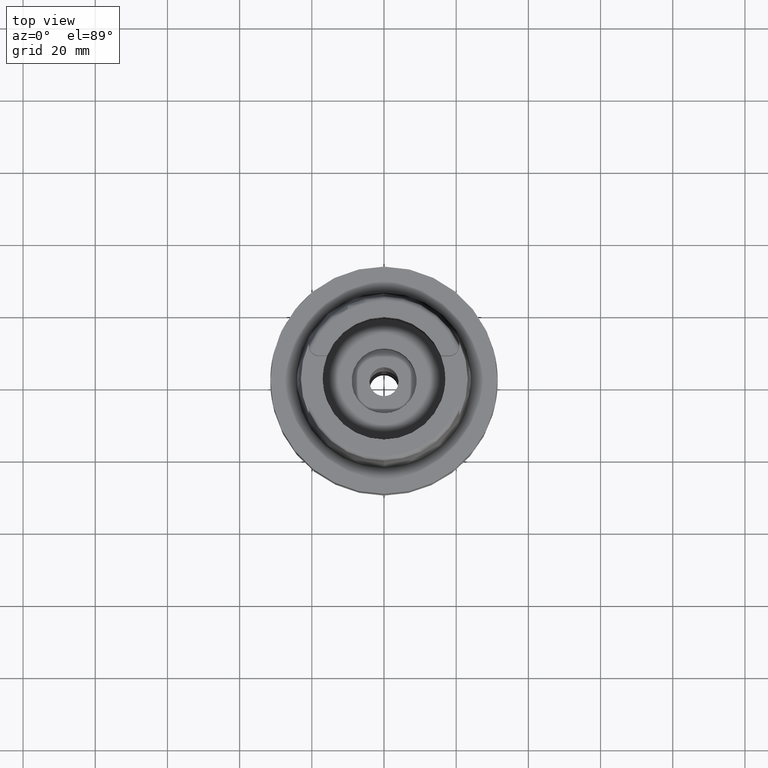
[diagram: clean part render]
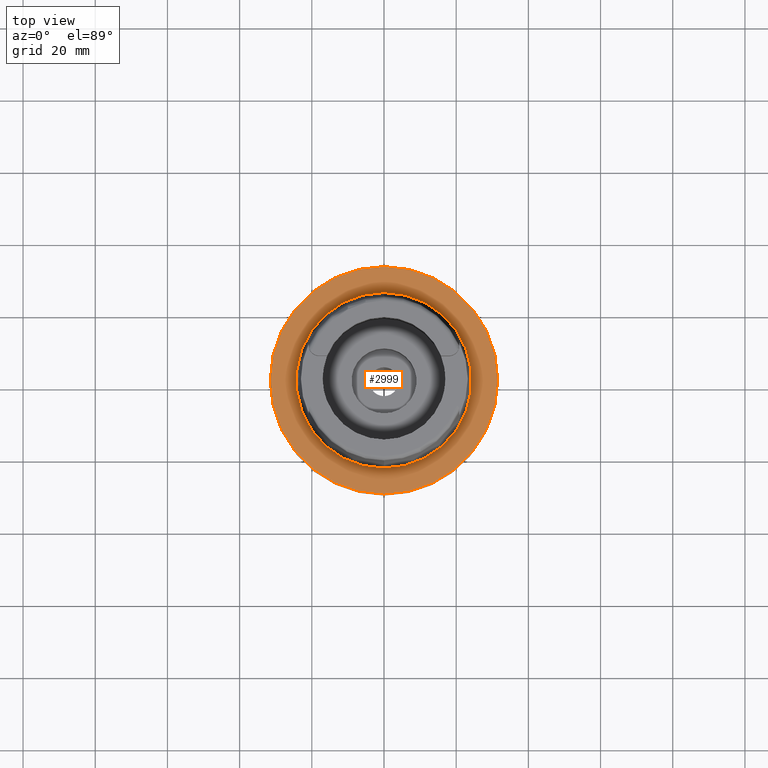
[diagram: same view with one face highlighted and labeled with its STEP entity id]
A machine part, top view. The second image highlights one B-rep face of the part: STEP entity #2999.
In plain terms, the highlighted planar face has unit normal (0, 0, 1).
Its self-contained STEP definition (entity closure, byte-faithful):
#614=CARTESIAN_POINT('',(0.E0,0.E0,3.410605131648E-13));
#615=DIRECTION('',(0.E0,0.E0,-1.E0));
#616=DIRECTION('',(0.E0,-1.E0,0.E0));
#617=AXIS2_PLACEMENT_3D('',#614,#615,#616);
#622=CARTESIAN_POINT('',(0.E0,0.E0,3.410605131648E-13));
#623=DIRECTION('',(0.E0,0.E0,-1.E0));
#624=DIRECTION('',(0.E0,1.E0,0.E0));
#625=AXIS2_PLACEMENT_3D('',#622,#623,#624);
#630=CARTESIAN_POINT('',(0.E0,0.E0,-7.389644451905E-13));
#631=DIRECTION('',(0.E0,0.E0,1.E0));
#632=DIRECTION('',(0.E0,-1.E0,0.E0));
#633=AXIS2_PLACEMENT_3D('',#630,#631,#632);
#638=CARTESIAN_POINT('',(0.E0,0.E0,-7.389644451905E-13));
#639=DIRECTION('',(0.E0,0.E0,1.E0));
#640=DIRECTION('',(0.E0,1.E0,0.E0));
#641=AXIS2_PLACEMENT_3D('',#638,#639,#640);
#2343=CARTESIAN_POINT('',(0.E0,-2.431503482329E1,-3.410605131648E-13));
#2344=VERTEX_POINT('',#2343);
#2345=CARTESIAN_POINT('',(0.E0,2.431503482329E1,-7.389644451905E-13));
#2346=VERTEX_POINT('',#2345);
#2613=CARTESIAN_POINT('',(0.E0,3.15E1,1.894780628694E-13));
#2614=VERTEX_POINT('',#2613);
#2615=CARTESIAN_POINT('',(0.E0,-3.15E1,3.410605131648E-13));
#2616=VERTEX_POINT('',#2615);
#2984=CARTESIAN_POINT('',(0.E0,0.E0,0.E0));
#2985=DIRECTION('',(0.E0,0.E0,1.E0));
#2986=DIRECTION('',(0.E0,1.E0,0.E0));
#2987=AXIS2_PLACEMENT_3D('',#2984,#2985,#2986);
#2988=PLANE('',#2987);
#2990=ORIENTED_EDGE('',*,*,#2989,.T.);
#2992=ORIENTED_EDGE('',*,*,#2991,.T.);
#2993=EDGE_LOOP('',(#2990,#2992));
#2994=FACE_OUTER_BOUND('',#2993,.F.);
#2995=ORIENTED_EDGE('',*,*,#2942,.T.);
#2996=ORIENTED_EDGE('',*,*,#2735,.T.);
#2997=EDGE_LOOP('',(#2995,#2996));
#2998=FACE_BOUND('',#2997,.F.);
#618=CIRCLE('',#617,3.15E1);
#626=CIRCLE('',#625,3.15E1);
#634=CIRCLE('',#633,2.431503482329E1);
#642=CIRCLE('',#641,2.431503482329E1);
#2735=EDGE_CURVE('',#2346,#2344,#642,.T.);
#2942=EDGE_CURVE('',#2344,#2346,#634,.T.);
#2989=EDGE_CURVE('',#2616,#2614,#618,.T.);
#2991=EDGE_CURVE('',#2614,#2616,#626,.T.);
#2999=ADVANCED_FACE('',(#2994,#2998),#2988,.T.);